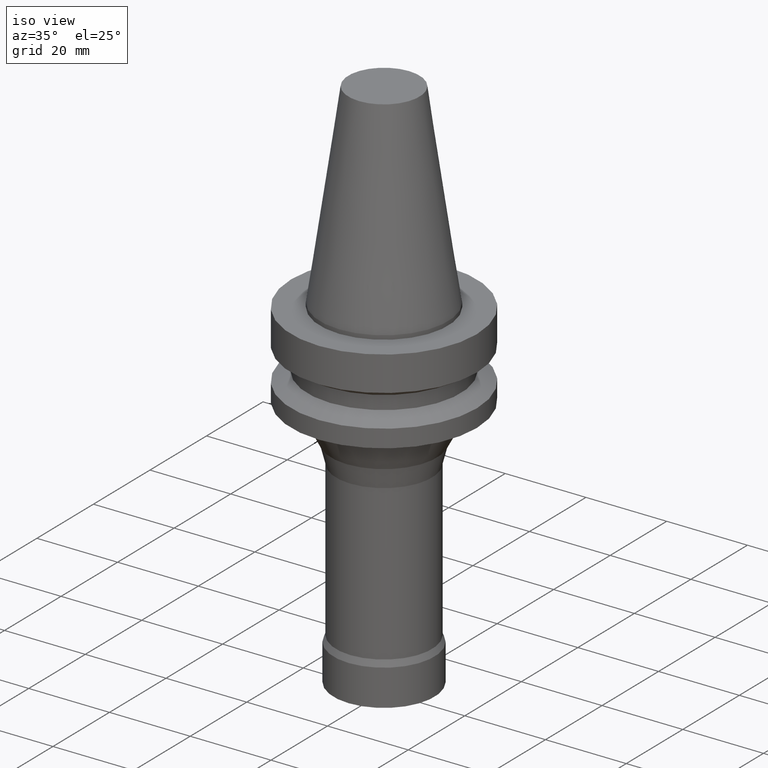
[diagram: clean part render]
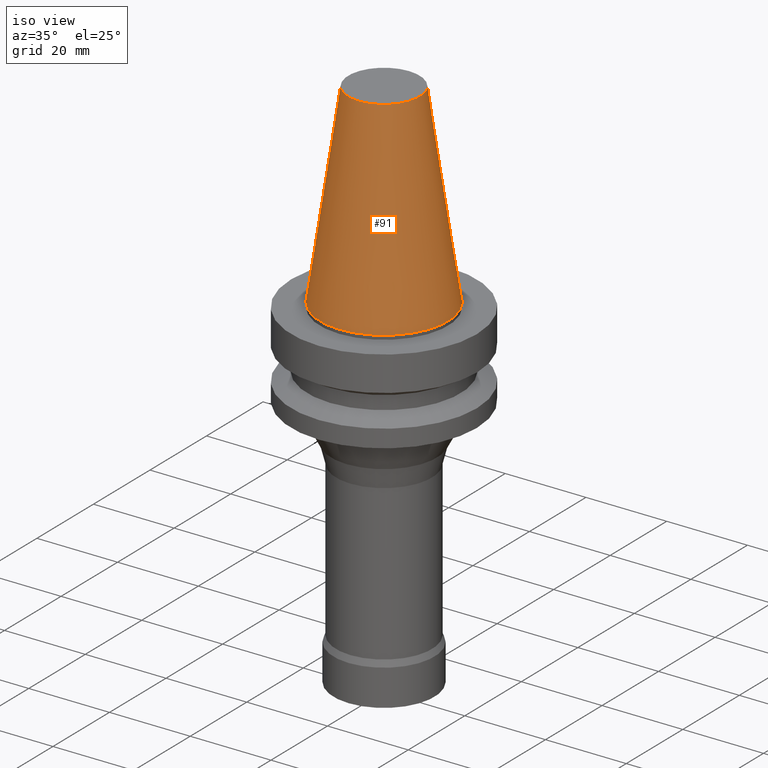
[diagram: same view with one face highlighted and labeled with its STEP entity id]
A machine part, iso view. The second image highlights one B-rep face of the part: STEP entity #91.
In plain terms, the highlighted conical surface has half-angle 8.297 deg.
Its self-contained STEP definition (entity closure, byte-faithful):
#91=ADVANCED_FACE('',(#139,#140),#141,.T.);
#139=FACE_BOUND('',#188,.T.);
#140=FACE_BOUND('',#189,.T.);
#141=CONICAL_SURFACE('',#190,12.3457500009933,0.14481587001362);
#188=EDGE_LOOP('',(#269));
#189=EDGE_LOOP('',(#270));
#190=AXIS2_PLACEMENT_3D('',#271,#272,#273);
#269=ORIENTED_EDGE('',*,*,#288,.F.);
#270=ORIENTED_EDGE('',*,*,#289,.T.);
#271=CARTESIAN_POINT('',(-1.4818226269683E-015,-2.96364525393659E-015,24.2));
#272=DIRECTION('',(6.12323399573677E-017,1.22464679914735E-016,-1.0));
#273=DIRECTION('',(-1.23259516440783E-032,1.0,1.22464679914735E-016));
#288=EDGE_CURVE('',#318,#318,#319,.T.);
#289=EDGE_CURVE('',#320,#320,#321,.T.);
#318=VERTEX_POINT('',#350);
#319=CIRCLE('',#351,15.875);
#320=VERTEX_POINT('',#352);
#321=CIRCLE('',#353,8.81650000198667);
#350=CARTESIAN_POINT('',(2.39407461153262E-031,15.875,-5.16130056395458E-015));
#351=AXIS2_PLACEMENT_3D('',#396,#397,#398);
#352=CARTESIAN_POINT('',(-2.96364525393659E-015,8.81650000198666,48.4));
#353=AXIS2_PLACEMENT_3D('',#399,#400,#401);
#396=CARTESIAN_POINT('',(4.35081943503005E-031,8.7016388700601E-031,-7.105427357601E-015));
#397=DIRECTION('',(6.12323399573677E-017,1.22464679914735E-016,-1.0));
#398=DIRECTION('',(-1.23259516440783E-032,1.0,1.22464679914735E-016));
#399=CARTESIAN_POINT('',(-2.96364525393659E-015,-5.92729050787319E-015,48.4));
#400=DIRECTION('',(6.12323399573676E-017,1.22464679914735E-016,-1.0));
#401=DIRECTION('',(-1.23259516440783E-032,1.0,1.22464679914735E-016));